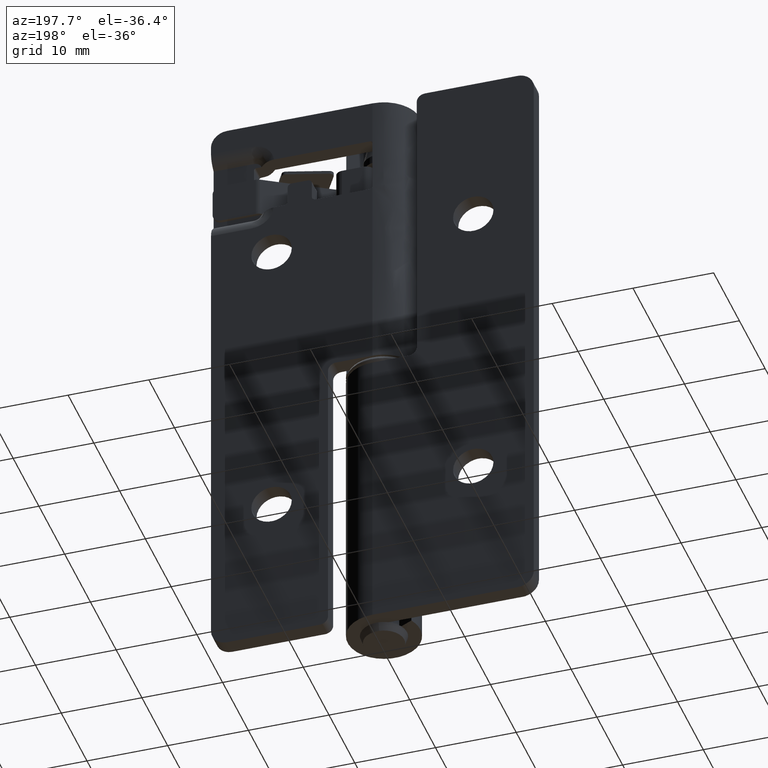
[diagram: clean part render]
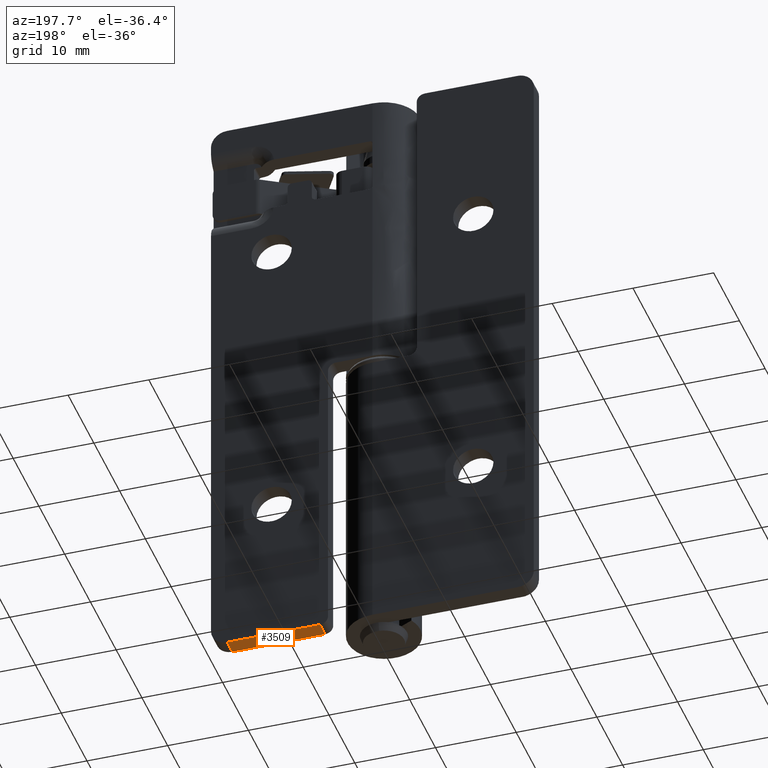
[diagram: same view with one face highlighted and labeled with its STEP entity id]
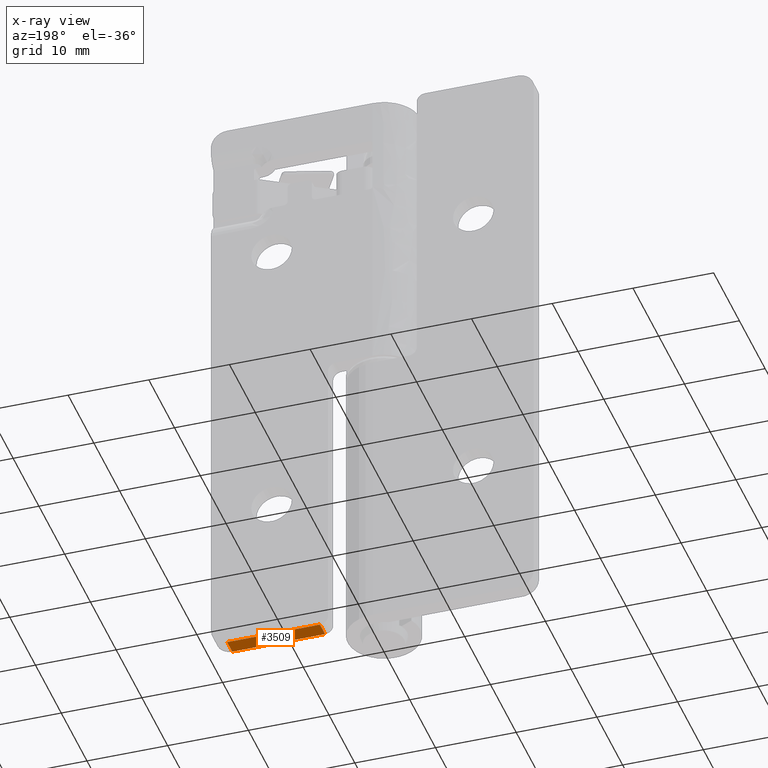
[diagram: x-ray of the same camera — body ghosted, the highlighted face saturated]
A machine part, auxiliary view. The second image highlights one B-rep face of the part: STEP entity #3509.
The next image is the same camera in x-ray: the body ghosted, the highlighted face saturated — about 0% of this face is hidden behind the body in this view.
In plain terms, the highlighted face is a freeform B-spline surface patch.
Its self-contained STEP definition (entity closure, byte-faithful):
#3156=CARTESIAN_POINT('',(6.500000000000000,2.499999999978955,0.0));
#3157=VERTEX_POINT('',#3156);
#3178=CARTESIAN_POINT('',(6.500000000000000,4.500000000001960,0.0));
#3179=VERTEX_POINT('',#3178);
#3193=CARTESIAN_POINT('',(6.500000000000000,2.499999999978955,0.0));
#3194=CARTESIAN_POINT('',(6.500000000000000,4.500000000001960,0.0));
#3195=QUASI_UNIFORM_CURVE('',1,(#3193,#3194),.UNSPECIFIED.,.F.,.U.);
#3196=EDGE_CURVE('',#3157,#3179,#3195,.T.);
#3482=CARTESIAN_POINT('',(5.925575022289984,4.599899996132441,0.0));
#3483=CARTESIAN_POINT('',(18.574425286149008,4.599899996132441,0.0));
#3484=CARTESIAN_POINT('',(5.925575022289984,2.400099950170799,0.0));
#3485=CARTESIAN_POINT('',(18.574425286149008,2.400099950170799,0.0));
#3486=B_SPLINE_SURFACE_WITH_KNOTS('',1,1,((#3482,#3484),(#3483,#3485)),.UNSPECIFIED.,.F.,.F.,.U.,(2,2),(2,2),(0.0,12.648850263859019),(0.0,2.199800045961643),.UNSPECIFIED.);
#3487=CARTESIAN_POINT('',(17.999999999984951,2.499999999941780,0.0));
#3488=VERTEX_POINT('',#3487);
#3489=CARTESIAN_POINT('',(6.500000000000000,2.499999999978955,0.0));
#3490=CARTESIAN_POINT('',(17.999999999984951,2.499999999941780,0.0));
#3491=QUASI_UNIFORM_CURVE('',1,(#3489,#3490),.UNSPECIFIED.,.F.,.U.);
#3492=EDGE_CURVE('',#3157,#3488,#3491,.T.);
#3493=ORIENTED_EDGE('',*,*,#3492,.F.);
#3494=ORIENTED_EDGE('',*,*,#3196,.T.);
#3495=CARTESIAN_POINT('',(17.999999999984951,4.500000000005639,0.0));
#3496=VERTEX_POINT('',#3495);
#3497=CARTESIAN_POINT('',(17.999999999984951,4.500000000005639,0.0));
#3498=CARTESIAN_POINT('',(6.500000000000000,4.500000000001960,0.0));
#3499=QUASI_UNIFORM_CURVE('',1,(#3497,#3498),.UNSPECIFIED.,.F.,.U.);
#3500=EDGE_CURVE('',#3496,#3179,#3499,.T.);
#3501=ORIENTED_EDGE('',*,*,#3500,.F.);
#3502=CARTESIAN_POINT('',(17.999999999984951,4.500000000005639,0.0));
#3503=CARTESIAN_POINT('',(17.999999999984951,2.499999999941780,0.0));
#3504=QUASI_UNIFORM_CURVE('',1,(#3502,#3503),.UNSPECIFIED.,.F.,.U.);
#3505=EDGE_CURVE('',#3496,#3488,#3504,.T.);
#3506=ORIENTED_EDGE('',*,*,#3505,.T.);
#3507=EDGE_LOOP('',(#3493,#3494,#3501,#3506));
#3508=FACE_OUTER_BOUND('',#3507,.T.);
#3509=ADVANCED_FACE('',(#3508),#3486,.T.);